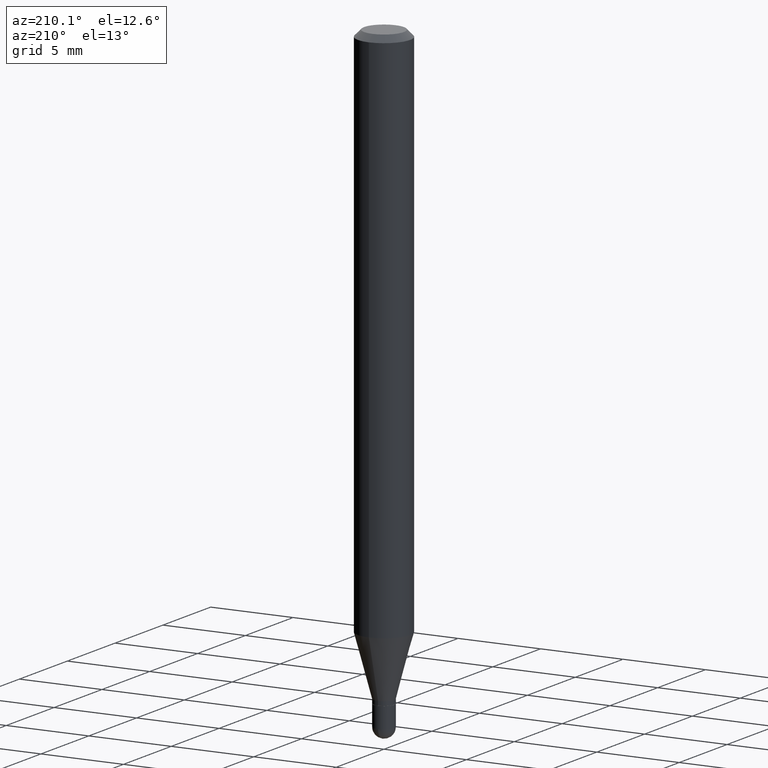
[diagram: clean part render]
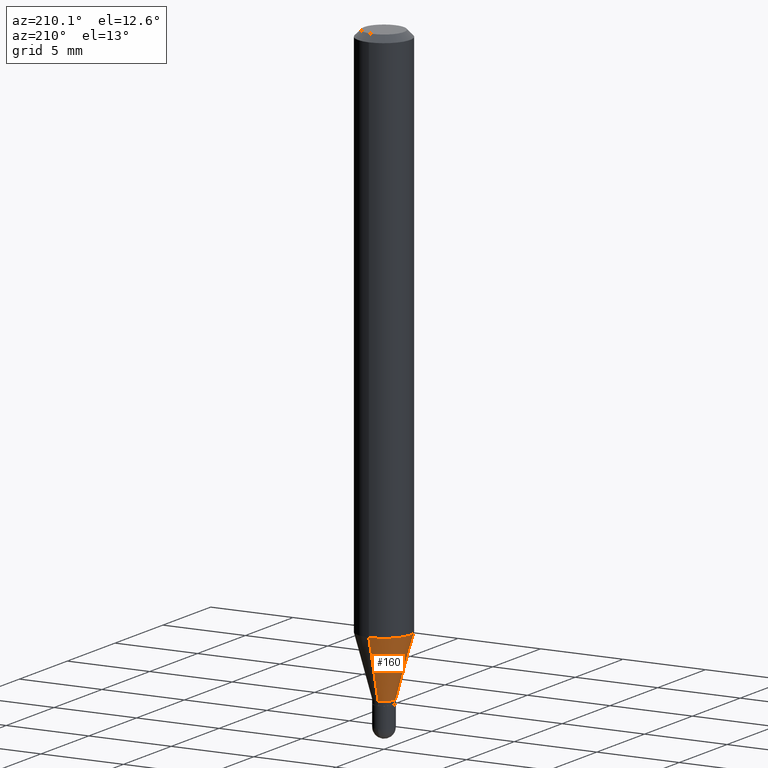
[diagram: same view with one face highlighted and labeled with its STEP entity id]
A machine part, auxiliary view. The second image highlights one B-rep face of the part: STEP entity #160.
In plain terms, the highlighted conical surface has half-angle 15 deg.
Its self-contained STEP definition (entity closure, byte-faithful):
#3 = EDGE_CURVE ( 'NONE', #81, #403, #286, .T. ) ;
#31 = DIRECTION ( 'NONE',  ( -2.445453721018015268E-29, 3.491502941661057766E-15, 1.000000000000000000 ) ) ;
#40 = VECTOR ( 'NONE', #69, 39.37007874015748854 ) ;
#49 = AXIS2_PLACEMENT_3D ( 'NONE', #340, #145, #421 ) ;
#69 = DIRECTION ( 'NONE',  ( -1.807323732225332900E-15, -0.2588190451025185190, 0.9659258262890689783 ) ) ;
#71 = FACE_OUTER_BOUND ( 'NONE', #301, .T. ) ;
#81 = VERTEX_POINT ( 'NONE', #502 ) ;
#82 = LINE ( 'NONE', #132, #237 ) ;
#86 = VERTEX_POINT ( 'NONE', #293 ) ;
#92 = ORIENTED_EDGE ( 'NONE', *, *, #94, .F. ) ;
#94 = EDGE_CURVE ( 'NONE', #398, #86, #124, .T. ) ;
#118 = DIRECTION ( 'NONE',  ( -6.982962677686265133E-15, -1.000000000000000000, 0.000000000000000000 ) ) ;
#124 = CIRCLE ( 'NONE', #49, 0.06250000000000000000 ) ;
#132 = CARTESIAN_POINT ( 'NONE',  ( 1.740829702612586212E-16, 0.02449999999999498065, -1.416000000000000147 ) ) ;
#145 = DIRECTION ( 'NONE',  ( -2.445453721018015268E-29, 3.491502941661057766E-15, 1.000000000000000000 ) ) ;
#160 = ADVANCED_FACE ( 'NONE', ( #71 ), #184, .T. ) ;
#184 = CONICAL_SURFACE ( 'NONE', #308, 0.02449999999999992462, 0.2617993877991506291 ) ;
#187 = DIRECTION ( 'NONE',  ( -6.982962677686265133E-15, -1.000000000000000000, 0.000000000000000000 ) ) ;
#205 = EDGE_CURVE ( 'NONE', #403, #86, #468, .T. ) ;
#214 = CARTESIAN_POINT ( 'NONE',  ( -1.710825856032783344E-16, -0.02450000000000486858, -1.416000000000000147 ) ) ;
#215 = CARTESIAN_POINT ( 'NONE',  ( 3.462762468961510445E-29, -4.943968165392057642E-15, -1.416000000000000147 ) ) ;
#227 = ORIENTED_EDGE ( 'NONE', *, *, #357, .F. ) ;
#233 = CARTESIAN_POINT ( 'NONE',  ( 3.462762468961510445E-29, -4.943968165392057642E-15, -1.416000000000000147 ) ) ;
#237 = VECTOR ( 'NONE', #284, 39.37007874015748143 ) ;
#240 = CARTESIAN_POINT ( 'NONE',  ( 4.440892098500935790E-16, 0.06249999999999553135, -1.274182069312383536 ) ) ;
#265 = DIRECTION ( 'NONE',  ( -2.445453721018015268E-29, 3.491502941661057766E-15, 1.000000000000000000 ) ) ;
#269 = CARTESIAN_POINT ( 'NONE',  ( -1.710825856032783344E-16, -0.02450000000000486858, -1.416000000000000147 ) ) ;
#284 = DIRECTION ( 'NONE',  ( 1.839019923739602682E-15, 0.2588190451025252914, 0.9659258262890670910 ) ) ;
#286 = CIRCLE ( 'NONE', #326, 0.02449999999999992462 ) ;
#293 = CARTESIAN_POINT ( 'NONE',  ( -4.364351673553605587E-16, -0.06250000000000446865, -1.274182069312382870 ) ) ;
#301 = EDGE_LOOP ( 'NONE', ( #227, #458, #334, #92 ) ) ;
#308 = AXIS2_PLACEMENT_3D ( 'NONE', #233, #31, #118 ) ;
#326 = AXIS2_PLACEMENT_3D ( 'NONE', #215, #265, #187 ) ;
#334 = ORIENTED_EDGE ( 'NONE', *, *, #205, .T. ) ;
#340 = CARTESIAN_POINT ( 'NONE',  ( 3.115953282654402493E-29, -4.448810443215959236E-15, -1.274182069312383314 ) ) ;
#357 = EDGE_CURVE ( 'NONE', #81, #398, #82, .T. ) ;
#398 = VERTEX_POINT ( 'NONE', #240 ) ;
#403 = VERTEX_POINT ( 'NONE', #214 ) ;
#421 = DIRECTION ( 'NONE',  ( -6.982962677686265922E-15, -1.000000000000000000, 4.370956789862821150E-15 ) ) ;
#458 = ORIENTED_EDGE ( 'NONE', *, *, #3, .T. ) ;
#468 = LINE ( 'NONE', #269, #40 ) ;
#502 = CARTESIAN_POINT ( 'NONE',  ( 3.090860900556762480E-16, 0.02449999999999498065, -1.416000000000000147 ) ) ;